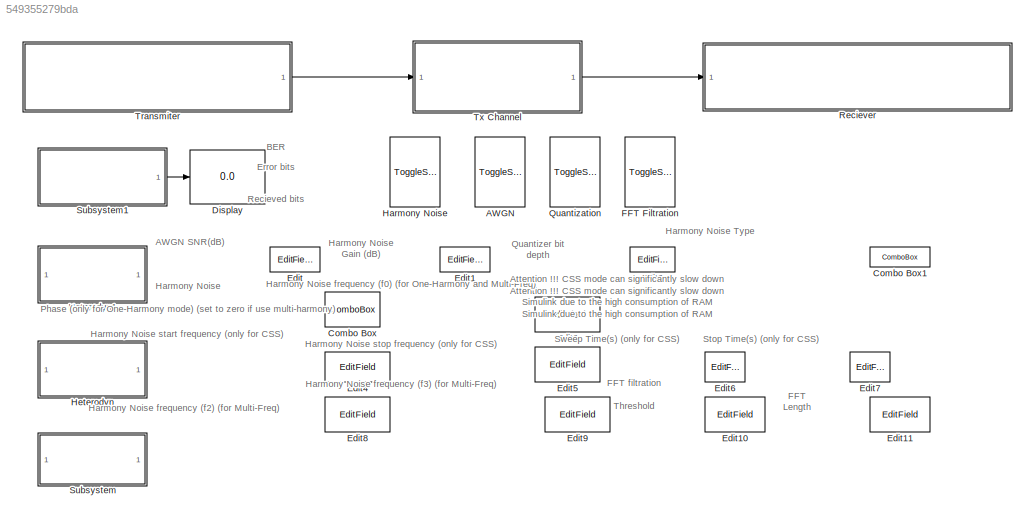
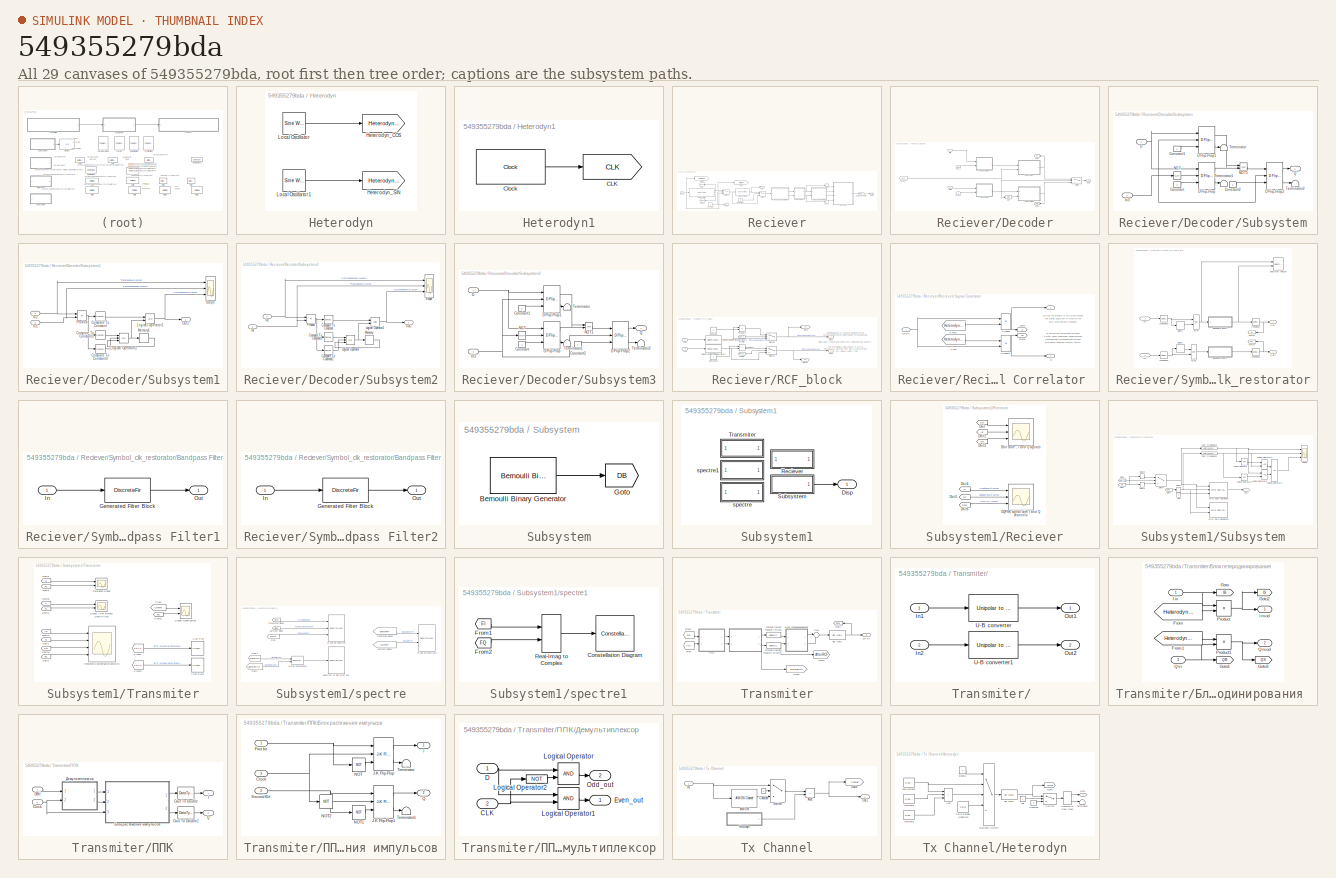
[diagram: thumbnail index - all 29 canvases of the model, root first then tree order]
MODEL slx_549355279bda
KIND model
CONFIG AbsTol = auto
CONFIG EnableMultiTasking = off
CONFIG FixedStep = auto
CONFIG MaxStep = auto
CONFIG MinStep = auto
CONFIG RelTol = 1e-3
CONFIG SampleTimeConstraint = Unconstrained
CONFIG SolverName = VariableStepAuto
CONFIG StartTime = 0.0
CONFIG StopTime = 1
WORKSPACE source: mxarray member
WORKSPACE BitRate = 20480
WORKSPACE CoreFreq = 40960
WORKSPACE RCF_Rolloff_factor = 0.1
WORKSPACE SampleRateQPSK = 819200
BLOCK [ToggleSwitchBlock] AWGN
  LabelPosition = Hide
BLOCK [ComboBox] Combo Box
  LabelPosition = Hide
  SelectedLabel = 0deg
BLOCK [ComboBox] Combo Box1
  LabelPosition = Hide
  SelectedLabel = One-Harmony
BLOCK [Display] Display
  Decimation = 1
  Ports = [1]
BLOCK [EditField] Edit
  Alignment = Center
  LabelPosition = Hide
  ShowInitialText = on
BLOCK [EditField] Edit1
  Alignment = Center
  LabelPosition = Hide
  ShowInitialText = on
BLOCK [EditField] Edit10
  Alignment = Center
  LabelPosition = Hide
  ShowInitialText = on
BLOCK [EditField] Edit11
  Alignment = Center
  LabelPosition = Hide
  ShowInitialText = on
BLOCK [EditField] Edit2
  Alignment = Center
  LabelPosition = Hide
  ShowInitialText = on
BLOCK [EditField] Edit3
  Alignment = Center
  LabelPosition = Hide
  ShowInitialText = on
BLOCK [EditField] Edit4
  Alignment = Center
  LabelPosition = Hide
  ShowInitialText = on
BLOCK [EditField] Edit5
  Alignment = Center
  LabelPosition = Hide
  ShowInitialText = on
BLOCK [EditField] Edit6
  Alignment = Center
  LabelPosition = Hide
  ShowInitialText = on
BLOCK [EditField] Edit7
  Alignment = Center
  LabelPosition = Hide
  ShowInitialText = on
BLOCK [EditField] Edit8
  Alignment = Center
  LabelPosition = Hide
  ShowInitialText = on
BLOCK [EditField] Edit9
  Alignment = Center
  LabelPosition = Hide
  ShowInitialText = on
BLOCK [ToggleSwitchBlock] FFT Filtration
  LabelPosition = Hide
BLOCK [ToggleSwitchBlock] Harmony Noise
  LabelPosition = Hide
BLOCK [SubSystem] Heterodyn
  Ports = []
  RequestExecContextInheritance = off
BLOCK [Goto] Heterodyn/Heterodyn_COS
  GotoTag = Heterodyn_COS
  TagVisibility = global
BLOCK [Goto] Heterodyn/Heterodyn_SIN
  GotoTag = Heterodyn_SIN
  TagVisibility = global
BLOCK [Reference] Heterodyn/Local Oscillator  REF=dspsrcs4/Sine Wave
  Ports = [0, 1]
  SourceBlock = dspsrcs4/Sine Wave
  SourceProductBaseCode = DS
  SourceType = Sine Wave
BLOCK [Reference] Heterodyn/Local Oscillator1  REF=dspsrcs4/Sine Wave
  Ports = [0, 1]
  SourceBlock = dspsrcs4/Sine Wave
  SourceProductBaseCode = DS
  SourceType = Sine Wave
BLOCK [SubSystem] Heterodyn1
  Ports = []
  RequestExecContextInheritance = off
BLOCK [Goto] Heterodyn1/CLK
  GotoTag = CLK
  TagVisibility = global
BLOCK [Reference] Heterodyn1/Clock  REF=simulink_extras/Flip Flops/Clock
  Ports = [0, 1]
  SourceBlock = simulink_extras/Flip Flops/Clock
  SourceProductBaseCode = SL
  SourceType = Digital clock
BLOCK [ToggleSwitchBlock] Quantization
  LabelPosition = Hide
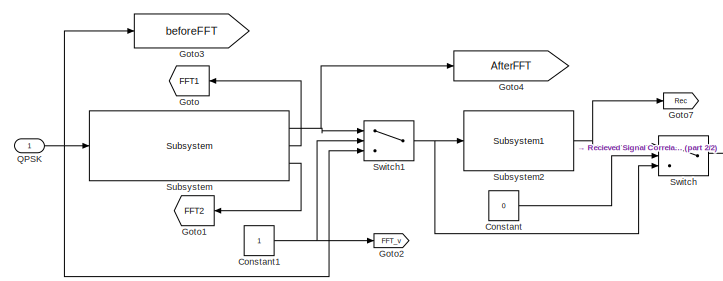
[diagram: Reciever - part 1/2, left side, full height]
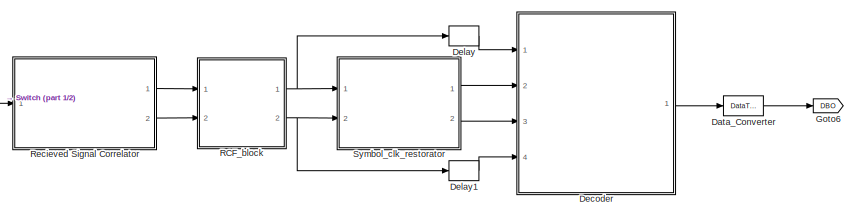
[diagram: Reciever - part 2/2, middle right region]
BLOCK [SubSystem] Reciever
  Ports = [1]
  RequestExecContextInheritance = off
BLOCK [Constant] Reciever/Constant
  Value = 0
BLOCK [Constant] Reciever/Constant1
BLOCK [DataTypeConversion] Reciever/Data_Converter
  OutDataTypeStr = double
  RndMeth = Floor
  SaturateOnIntegerOverflow = off
BLOCK [SubSystem] Reciever/Decoder
  Ports = [4, 1]
  RequestExecContextInheritance = off
BLOCK [Inport] Reciever/Decoder/CLK_I
  Port = 2
BLOCK [Inport] Reciever/Decoder/CLK_Q
  Port = 3
BLOCK [From] Reciever/Decoder/From
  GotoTag = CLK
  TagVisibility = global
BLOCK [Goto] Reciever/Decoder/Goto2
  GotoTag = RI
  TagVisibility = global
BLOCK [Goto] Reciever/Decoder/Goto3
  GotoTag = RQ
  TagVisibility = global
BLOCK [Inport] Reciever/Decoder/IBits
BLOCK [Logic] Reciever/Decoder/NOT
  AllPortsSameDT = off
  Operator = NOT
  OutDataTypeStr = boolean
  Ports = [1, 1]
BLOCK [Outport] Reciever/Decoder/Out1
BLOCK [Inport] Reciever/Decoder/Qbits
  Port = 4
BLOCK [SubSystem] Reciever/Decoder/Subsystem
  Ports = [2, 1]
  RequestExecContextInheritance = off
BLOCK [Constant] Reciever/Decoder/Subsystem/Constant
BLOCK [Constant] Reciever/Decoder/Subsystem/Constant1
BLOCK [Constant] Reciever/Decoder/Subsystem/Constant2
BLOCK [Inport] Reciever/Decoder/Subsystem/D
BLOCK [Reference] Reciever/Decoder/Subsystem/D Flip-Flop  REF=simulink_extras/Flip Flops/D Flip-Flop
  Ports = [3, 2]
  SourceBlock = simulink_extras/Flip Flops/D Flip-Flop
  SourceProductBaseCode = SL
  SourceType = DFlipFlop
BLOCK [Reference] Reciever/Decoder/Subsystem/D Flip-Flop1  REF=simulink_extras/Flip Flops/D Flip-Flop
  Ports = [3, 2]
  SourceBlock = simulink_extras/Flip Flops/D Flip-Flop
  SourceProductBaseCode = SL
  SourceType = DFlipFlop
BLOCK [Reference] Reciever/Decoder/Subsystem/D Flip-Flop2  REF=simulink_extras/Flip Flops/D Flip-Flop
  Ports = [3, 2]
  SourceBlock = simulink_extras/Flip Flops/D Flip-Flop
  SourceProductBaseCode = SL
  SourceType = DFlipFlop
BLOCK [Inport] Reciever/Decoder/Subsystem/In3
  Port = 2
BLOCK [Logic] Reciever/Decoder/Subsystem/NOT
  AllPortsSameDT = off
  Operator = NOT
  OutDataTypeStr = boolean
  Ports = [1, 1]
BLOCK [Logic] Reciever/Decoder/Subsystem/NOT1
  AllPortsSameDT = off
  Operator = OR
  OutDataTypeStr = boolean
  Ports = [2, 1]
BLOCK [Outport] Reciever/Decoder/Subsystem/Q
BLOCK [Terminator] Reciever/Decoder/Subsystem/Terminator
BLOCK [Terminator] Reciever/Decoder/Subsystem/Terminator1
BLOCK [Terminator] Reciever/Decoder/Subsystem/Terminator2
BLOCK [SubSystem] Reciever/Decoder/Subsystem1
  Ports = [2, 1]
  RequestExecContextInheritance = off
BLOCK [Reference] Reciever/Decoder/Subsystem1/Compare To Constant  REF=simulink/Logic and Bit
Operations/Compare
To Constant
  Ports = [1, 1]
  SourceBlock = simulink/Logic and Bit\nOperations/Compare\nTo Constant
  SourceProductBaseCode = SL
  SourceType = Compare To Constant
BLOCK [Reference] Reciever/Decoder/Subsystem1/Compare To Constant2  REF=simulink/Logic and Bit
Operations/Compare
To Constant
  Ports = [1, 1]
  SourceBlock = simulink/Logic and Bit\nOperations/Compare\nTo Constant
  SourceProductBaseCode = SL
  SourceType = Compare To Constant
BLOCK [Reference] Reciever/Decoder/Subsystem1/Compare To Constant3  REF=simulink/Logic and Bit
Operations/Compare
To Constant
  Ports = [1, 1]
  SourceBlock = simulink/Logic and Bit\nOperations/Compare\nTo Constant
  SourceProductBaseCode = SL
  SourceType = Compare To Constant
BLOCK [Inport] Reciever/Decoder/Subsystem1/In1
  Port = 2
BLOCK [Inport] Reciever/Decoder/Subsystem1/In2
BLOCK [Logic] Reciever/Decoder/Subsystem1/Logical Operator1
  AllPortsSameDT = off
  OutDataTypeStr = boolean
  Ports = [2, 1]
BLOCK [Logic] Reciever/Decoder/Subsystem1/Logical Operator2
  AllPortsSameDT = off
  Inputs = 3
  Operator = OR
  OutDataTypeStr = boolean
  Ports = [3, 1]
BLOCK [Memory] Reciever/Decoder/Subsystem1/Memory1
  InheritSampleTime = on
BLOCK [Outport] Reciever/Decoder/Subsystem1/Out1
  VectorParamsAs1DForOutWhenUnconnected = off
BLOCK [Product] Reciever/Decoder/Subsystem1/Product
  Ports = [2, 1]
BLOCK [Scope] Reciever/Decoder/Subsystem1/Scope
  Floating = off
  NumInputPorts = 3
  Ports = [3]
  ScopeSpecificationString = Simulink.scopes.TimeScopeBlockCfg('CurrentConfiguration', extmgr.ConfigurationSet(extmgr.Configuration('Core','General UI',true,'FigureColor',[1 1 1]),extmgr.Configuration('Core','Source UI',true),extmgr.Configuration('Sources','WiredSimulink',true,'DataLoggingVariableName','ScopeData1'),extmgr.Configuration('Visuals','Time Domain',true,'SerializedDisplays',{struct('MinYLimReal','-7.87641','MaxYLi...<+3354ch>
BLOCK [SubSystem] Reciever/Decoder/Subsystem2
  Ports = [2, 1]
  RequestExecContextInheritance = off
BLOCK [Reference] Reciever/Decoder/Subsystem2/Compare To Constant  REF=simulink/Logic and Bit
Operations/Compare
To Constant
  Ports = [1, 1]
  SourceBlock = simulink/Logic and Bit\nOperations/Compare\nTo Constant
  SourceProductBaseCode = SL
  SourceType = Compare To Constant
BLOCK [Reference] Reciever/Decoder/Subsystem2/Compare To Constant1  REF=simulink/Logic and Bit
Operations/Compare
To Constant
  Ports = [1, 1]
  SourceBlock = simulink/Logic and Bit\nOperations/Compare\nTo Constant
  SourceProductBaseCode = SL
  SourceType = Compare To Constant
BLOCK [Reference] Reciever/Decoder/Subsystem2/Compare To Constant2  REF=simulink/Logic and Bit
Operations/Compare
To Constant
  Ports = [1, 1]
  SourceBlock = simulink/Logic and Bit\nOperations/Compare\nTo Constant
  SourceProductBaseCode = SL
  SourceType = Compare To Constant
BLOCK [Inport] Reciever/Decoder/Subsystem2/In1
BLOCK [Inport] Reciever/Decoder/Subsystem2/In2
  Port = 2
BLOCK [Logic] Reciever/Decoder/Subsystem2/Logical Operator
  AllPortsSameDT = off
  Inputs = 3
  Operator = OR
  OutDataTypeStr = boolean
  Ports = [3, 1]
BLOCK [Logic] Reciever/Decoder/Subsystem2/Logical Operator1
  AllPortsSameDT = off
  OutDataTypeStr = boolean
  Ports = [2, 1]
BLOCK [Memory] Reciever/Decoder/Subsystem2/Memory
  InheritSampleTime = on
BLOCK [Outport] Reciever/Decoder/Subsystem2/Out1
  VectorParamsAs1DForOutWhenUnconnected = off
BLOCK [Product] Reciever/Decoder/Subsystem2/Product
  Ports = [2, 1]
BLOCK [Scope] Reciever/Decoder/Subsystem2/Scope
  Floating = off
  NumInputPorts = 3
  Ports = [3]
  ScopeSpecificationString = Simulink.scopes.TimeScopeBlockCfg('CurrentConfiguration', extmgr.ConfigurationSet(extmgr.Configuration('Core','General UI',true,'FigureColor',[1 1 1]),extmgr.Configuration('Core','Source UI',true),extmgr.Configuration('Sources','WiredSimulink',true,'DataLoggingVariableName','ScopeData1'),extmgr.Configuration('Visuals','Time Domain',true,'SerializedDisplays',{struct('MinYLimReal','-0.125','MaxYLimR...<+3326ch>
BLOCK [SubSystem] Reciever/Decoder/Subsystem3
  Ports = [2, 1]
  RequestExecContextInheritance = off
BLOCK [Constant] Reciever/Decoder/Subsystem3/Constant
BLOCK [Constant] Reciever/Decoder/Subsystem3/Constant1
BLOCK [Constant] Reciever/Decoder/Subsystem3/Constant2
BLOCK [Inport] Reciever/Decoder/Subsystem3/D
BLOCK [Reference] Reciever/Decoder/Subsystem3/D Flip-Flop  REF=simulink_extras/Flip Flops/D Flip-Flop
  Ports = [3, 2]
  SourceBlock = simulink_extras/Flip Flops/D Flip-Flop
  SourceProductBaseCode = SL
  SourceType = DFlipFlop
BLOCK [Reference] Reciever/Decoder/Subsystem3/D Flip-Flop1  REF=simulink_extras/Flip Flops/D Flip-Flop
  Ports = [3, 2]
  SourceBlock = simulink_extras/Flip Flops/D Flip-Flop
  SourceProductBaseCode = SL
  SourceType = DFlipFlop
BLOCK [Reference] Reciever/Decoder/Subsystem3/D Flip-Flop2  REF=simulink_extras/Flip Flops/D Flip-Flop
  Ports = [3, 2]
  SourceBlock = simulink_extras/Flip Flops/D Flip-Flop
  SourceProductBaseCode = SL
  SourceType = DFlipFlop
BLOCK [Inport] Reciever/Decoder/Subsystem3/In3
  Port = 2
BLOCK [Logic] Reciever/Decoder/Subsystem3/NOT
  AllPortsSameDT = off
  Operator = NOT
  OutDataTypeStr = boolean
  Ports = [1, 1]
BLOCK [Logic] Reciever/Decoder/Subsystem3/NOT1
  AllPortsSameDT = off
  Operator = OR
  OutDataTypeStr = boolean
  Ports = [2, 1]
BLOCK [Outport] Reciever/Decoder/Subsystem3/Q
BLOCK [Terminator] Reciever/Decoder/Subsystem3/Terminator
BLOCK [Terminator] Reciever/Decoder/Subsystem3/Terminator1
BLOCK [Terminator] Reciever/Decoder/Subsystem3/Terminator2
BLOCK [Switch] Reciever/Decoder/Switch
  Criteria = u2 > Threshold
  InputSameDT = off
  SaturateOnIntegerOverflow = off
BLOCK [Delay] Reciever/Delay
  DelayLength = 9
  InitialCondition = 0
  InputPortMap = u0
  Ports = [1, 1]
BLOCK [Delay] Reciever/Delay1
  DelayLength = 9
  InitialCondition = 0
  InputPortMap = u0
  Ports = [1, 1]
BLOCK [Goto] Reciever/Goto
  GotoTag = FFT1
  TagVisibility = global
BLOCK [Goto] Reciever/Goto1
  GotoTag = FFT2
  TagVisibility = global
BLOCK [Goto] Reciever/Goto2
  GotoTag = FFT_v
  TagVisibility = global
BLOCK [Goto] Reciever/Goto3
  GotoTag = beforeFFT
  TagVisibility = global
BLOCK [Goto] Reciever/Goto4
  GotoTag = AfterFFT
  TagVisibility = global
BLOCK [Goto] Reciever/Goto6
  GotoTag = DBO
  TagVisibility = global
BLOCK [Goto] Reciever/Goto7
  GotoTag = Rec
  TagVisibility = global
BLOCK [Inport] Reciever/QPSK
  NameLocation = top
BLOCK [SubSystem] Reciever/RCF_block
  Ports = [2, 2]
  RequestExecContextInheritance = off
BLOCK [Constant] Reciever/RCF_block/Constant
  Value = -1
BLOCK [Constant] Reciever/RCF_block/Constant1
BLOCK [From] Reciever/RCF_block/From1
  GotoTag = FFT_v
  TagVisibility = global
BLOCK [From] Reciever/RCF_block/From3
  GotoTag = FFT_v
  TagVisibility = global
BLOCK [Goto] Reciever/RCF_block/Goto
  GotoTag = FI
  TagVisibility = global
BLOCK [Goto] Reciever/RCF_block/Goto1
  GotoTag = FQ
  TagVisibility = global
BLOCK [Inport] Reciever/RCF_block/In1
BLOCK [Inport] Reciever/RCF_block/In2
  Port = 2
BLOCK [Outport] Reciever/RCF_block/Out1
  VectorParamsAs1DForOutWhenUnconnected = off
BLOCK [Outport] Reciever/RCF_block/Out2
  Port = 2
  VectorParamsAs1DForOutWhenUnconnected = off
BLOCK [Product] Reciever/RCF_block/Product1
  Ports = [2, 1]
BLOCK [Product] Reciever/RCF_block/Product2
  Ports = [2, 1]
BLOCK [Reference] Reciever/RCF_block/Raised Cosine Receive Filter1  REF=commfilt2/Raised Cosine
Receive Filter
  Ports = [1, 1]
  SourceBlock = commfilt2/Raised Cosine\nReceive Filter
  SourceProductBaseCode = CM
  SourceType = Raised Cosine Receive Filter
BLOCK [Reference] Reciever/RCF_block/Raised Cosine Receive Filter2  REF=commfilt2/Raised Cosine
Receive Filter
  Ports = [1, 1]
  SourceBlock = commfilt2/Raised Cosine\nReceive Filter
  SourceProductBaseCode = CM
  SourceType = Raised Cosine Receive Filter
BLOCK [Switch] Reciever/RCF_block/Switch1
  Criteria = u2 > Threshold
  InputSameDT = off
  SaturateOnIntegerOverflow = off
BLOCK [Switch] Reciever/RCF_block/Switch3
  Criteria = u2 > Threshold
  InputSameDT = off
  SaturateOnIntegerOverflow = off
BLOCK [SubSystem] Reciever/Recieved Signal Correlator 
  Ports = [1, 2]
  RequestExecContextInheritance = off
BLOCK [From] Reciever/Recieved Signal Correlator /From
  GotoTag = Heterodyn_SIN
  TagVisibility = global
BLOCK [From] Reciever/Recieved Signal Correlator /From1
  GotoTag = Heterodyn_COS
  TagVisibility = global
BLOCK [Goto] Reciever/Recieved Signal Correlator /Goto
  GotoTag = HI
  TagVisibility = global
BLOCK [Goto] Reciever/Recieved Signal Correlator /Goto1
  GotoTag = HQ
  TagVisibility = global
BLOCK [Outport] Reciever/Recieved Signal Correlator /I
  VectorParamsAs1DForOutWhenUnconnected = off
BLOCK [Product] Reciever/Recieved Signal Correlator /Product
  Inputs = **
  Ports = [2, 1]
BLOCK [Product] Reciever/Recieved Signal Correlator /Product1
  Inputs = **
  Ports = [2, 1]
BLOCK [Outport] Reciever/Recieved Signal Correlator /Q
  Port = 2
  VectorParamsAs1DForOutWhenUnconnected = off
BLOCK [Inport] Reciever/Recieved Signal Correlator /QPSK
BLOCK [Reference] Reciever/Subsystem  REF=Custom_Lib/Subsystem
  Ports = [1, 3]
  SourceBlock = Custom_Lib/Subsystem
  SourceType = Fourier Filtration
BLOCK [Reference] Reciever/Subsystem2  REF=Custom_Lib/Subsystem1
  Ports = [1, 1]
  SourceBlock = Custom_Lib/Subsystem1
  SourceType = Quantization
BLOCK [Switch] Reciever/Switch
  Criteria = u2 > Threshold
  InputSameDT = off
  SaturateOnIntegerOverflow = off
BLOCK [Switch] Reciever/Switch1
  Criteria = u2 > Threshold
  InputSameDT = off
  SaturateOnIntegerOverflow = off
BLOCK [SubSystem] Reciever/Symbol_clk_restorator
  Ports = [2, 2]
  RequestExecContextInheritance = off
BLOCK [SubSystem] Reciever/Symbol_clk_restorator/Bandpass Filter1
  CopyFcn = fdesignblkfcn(gcbh, {'CopyFcn'});
  DialogController = fdesignblkfcn
  InitFcn = fdesignblkfcn(gcbh, {'InitFcn'});
  Ports = [1, 1]
  RequestExecContextInheritance = off
  UserDataPersistent = on
BLOCK [DiscreteFir] Reciever/Symbol_clk_restorator/Bandpass Filter1/Generated Filter Block
  Coefficients = [4.05282452307651402e-05 7.68148911109423196e-05 0.000102809615405821014 0.000113840452892248302 0.000107451763689613838 8.39092471331200112e-05 4.62717979219793557e-05 -7.75579204515229648e-19 -4.78508545167798566e-05 -8.97324707078659285e-05 -0.00011882451270601134 -0.000130172989540274333 -0.00012155180540719416 -9.38945353886637608e-05 -5.12124263141688931e-05 1.31470799812175278e-18 5.1782956...<+14191ch>
  InputPortMap = u0
  OutputPortMap = o0
  Ports = [1, 1]
  Tag = BlockMethodSubSystem
BLOCK [Inport] Reciever/Symbol_clk_restorator/Bandpass Filter1/In
BLOCK [Outport] Reciever/Symbol_clk_restorator/Bandpass Filter1/Out
  VectorParamsAs1DForOutWhenUnconnected = off
BLOCK [SubSystem] Reciever/Symbol_clk_restorator/Bandpass Filter2
  CopyFcn = fdesignblkfcn(gcbh, {'CopyFcn'});
  DialogController = fdesignblkfcn
  InitFcn = fdesignblkfcn(gcbh, {'InitFcn'});
  Ports = [1, 1]
  RequestExecContextInheritance = off
  UserDataPersistent = on
BLOCK [DiscreteFir] Reciever/Symbol_clk_restorator/Bandpass Filter2/Generated Filter Block
  Coefficients = [4.05282452307651402e-05 7.68148911109423196e-05 0.000102809615405821014 0.000113840452892248302 0.000107451763689613838 8.39092471331200112e-05 4.62717979219793557e-05 -7.75579204515229648e-19 -4.78508545167798566e-05 -8.97324707078659285e-05 -0.00011882451270601134 -0.000130172989540274333 -0.00012155180540719416 -9.38945353886637608e-05 -5.12124263141688931e-05 1.31470799812175278e-18 5.1782956...<+14191ch>
  InputPortMap = u0
  OutputPortMap = o0
  Ports = [1, 1]
  Tag = BlockMethodSubSystem
BLOCK [Inport] Reciever/Symbol_clk_restorator/Bandpass Filter2/In
BLOCK [Outport] Reciever/Symbol_clk_restorator/Bandpass Filter2/Out
  VectorParamsAs1DForOutWhenUnconnected = off
BLOCK [Delay] Reciever/Symbol_clk_restorator/Delay1
  InitialCondition = 0
  InputPortMap = u0
  Ports = [1, 1]
BLOCK [Delay] Reciever/Symbol_clk_restorator/Delay2
  InitialCondition = 0
  InputPortMap = u0
  Ports = [1, 1]
BLOCK [Goto] Reciever/Symbol_clk_restorator/Goto4
  GotoTag = Qsy
  TagVisibility = global
BLOCK [Goto] Reciever/Symbol_clk_restorator/Goto5
  GotoTag = Isy
  TagVisibility = global
BLOCK [Inport] Reciever/Symbol_clk_restorator/In1
BLOCK [Inport] Reciever/Symbol_clk_restorator/In2
  Port = 2
BLOCK [Reference] Reciever/Symbol_clk_restorator/IsPositive  REF=simulink/Logic and Bit
Operations/Compare
To Zero
  Ports = [1, 1]
  SourceBlock = simulink/Logic and Bit\nOperations/Compare\nTo Zero
  SourceProductBaseCode = SL
  SourceType = Compare To Zero
BLOCK [Reference] Reciever/Symbol_clk_restorator/IsPositive1  REF=simulink/Logic and Bit
Operations/Compare
To Zero
  Ports = [1, 1]
  SourceBlock = simulink/Logic and Bit\nOperations/Compare\nTo Zero
  SourceProductBaseCode = SL
  SourceType = Compare To Zero
BLOCK [Reference] Reciever/Symbol_clk_restorator/IsPositive2  REF=simulink/Logic and Bit
Operations/Compare
To Zero
  Ports = [1, 1]
  SourceBlock = simulink/Logic and Bit\nOperations/Compare\nTo Zero
  SourceProductBaseCode = SL
  SourceType = Compare To Zero
BLOCK [Reference] Reciever/Symbol_clk_restorator/IsPositive3  REF=simulink/Logic and Bit
Operations/Compare
To Zero
  Ports = [1, 1]
  SourceBlock = simulink/Logic and Bit\nOperations/Compare\nTo Zero
  SourceProductBaseCode = SL
  SourceType = Compare To Zero
BLOCK [Outport] Reciever/Symbol_clk_restorator/Out1
  VectorParamsAs1DForOutWhenUnconnected = off
BLOCK [Outport] Reciever/Symbol_clk_restorator/Out2
  Port = 2
  VectorParamsAs1DForOutWhenUnconnected = off
BLOCK [SpectrumAnalyzer] Reciever/Symbol_clk_restorator/Spectrum Analyzer
  NumInputPorts = 2
  Ports = [2]
  ScopeSpecificationString = spbscopes.SpectrumAnalyzerBlockCfg('CurrentConfiguration', extmgr.ConfigurationSet(extmgr.Configuration('Core','General UI',true),extmgr.Configuration('Core','Source UI',true),extmgr.Configuration('Sources','WiredSimulink',true),extmgr.Configuration('Visuals','Spectrum',true,'AxesProperties',struct('Color',{[0 0 0],[0 0 0]},'XColor',{[0.686274509803922 0.686274509803922 0.686274509803922],[0.68627...<+2221ch>
BLOCK [Logic] Reciever/Symbol_clk_restorator/XOR
  AllPortsSameDT = off
  IconShape = distinctive
  Operator = XOR
  OutDataTypeStr = fixdt(1,16)
  Ports = [2, 1]
BLOCK [Logic] Reciever/Symbol_clk_restorator/XOR1
  AllPortsSameDT = off
  IconShape = distinctive
  Operator = XOR
  OutDataTypeStr = fixdt(1,16)
  Ports = [2, 1]
BLOCK [SubSystem] Subsystem
  Ports = []
  RequestExecContextInheritance = off
BLOCK [Reference] Subsystem/Bernoulli Binary Generator  REF=commrandsrc3/Bernoulli Binary
Generator
  Ports = [0, 1]
  SourceBlock = commrandsrc3/Bernoulli Binary\nGenerator
  SourceProductBaseCode = CM
  SourceType = Bernoulli Binary Generator
BLOCK [Goto] Subsystem/Goto
  GotoTag = DB
  TagVisibility = global
BLOCK [SubSystem] Subsystem1
  Ports = [0, 1]
  RequestExecContextInheritance = off
BLOCK [Outport] Subsystem1/Disp
  VectorParamsAs1DForOutWhenUnconnected = off
BLOCK [SubSystem] Subsystem1/Reciever
  Ports = []
  RequestExecContextInheritance = off
BLOCK [From] Subsystem1/Reciever/Dbit
  GotoTag = DB
  TagVisibility = global
BLOCK [Scope] Subsystem1/Reciever/Dbit code , I and Q signals
  Floating = off
  NumInputPorts = 3
  Ports = [3]
  ScopeSpecificationString = Simulink.scopes.TimeScopeBlockCfg('CurrentConfiguration', extmgr.ConfigurationSet(extmgr.Configuration('Core','General UI',true),extmgr.Configuration('Core','Source UI',true),extmgr.Configuration('Sources','WiredSimulink',true,'DataLoggingVariableName','ScopeData2'),extmgr.Configuration('Visuals','Time Domain',true,'PlotType','Stairs','SerializedDisplays',{struct('MinYLimReal','-0.125','MaxYLimRea...<+2814ch>
BLOCK [From] Subsystem1/Reciever/Dbit2
  GotoTag = IB
  TagVisibility = global
BLOCK [From] Subsystem1/Reciever/Dbit3
  GotoTag = QB
  TagVisibility = global
BLOCK [From] Subsystem1/Reciever/Dbit4
  GotoTag = IS
  TagVisibility = global
BLOCK [From] Subsystem1/Reciever/Dbit5
  GotoTag = QS
  TagVisibility = global
BLOCK [From] Subsystem1/Reciever/Dbit6
  GotoTag = QPSK
  TagVisibility = global
BLOCK [Scope] Subsystem1/Reciever/OQPSK signal with I and Q channels
  Floating = off
  NumInputPorts = 3
  Ports = [3]
  ScopeSpecificationString = Simulink.scopes.TimeScopeBlockCfg('CurrentConfiguration', extmgr.ConfigurationSet(extmgr.Configuration('Core','General UI',true,'FigureColor',[1 1 1]),extmgr.Configuration('Core','Source UI',true),extmgr.Configuration('Sources','WiredSimulink',true,'DataLoggingVariableName','ScopeData3'),extmgr.Configuration('Visuals','Time Domain',true,'PlotType','Line','SerializedDisplays',{struct('MinYLimReal',...<+3319ch>
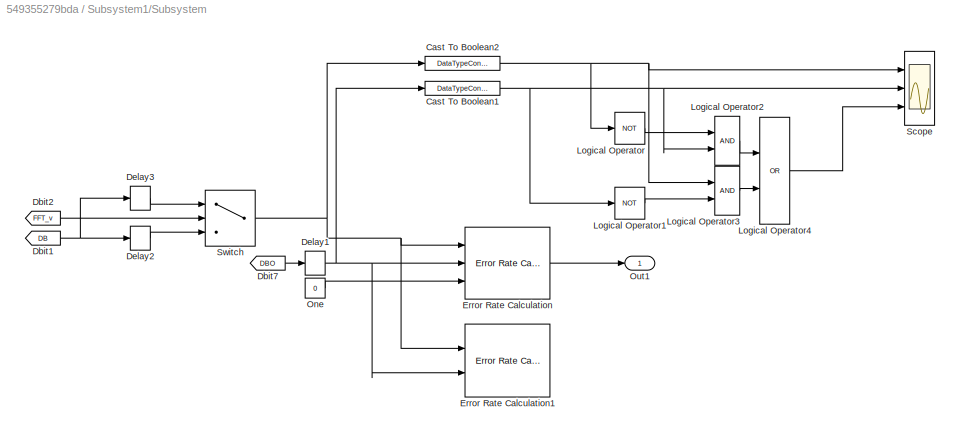
BLOCK [SubSystem] Subsystem1/Subsystem
  Ports = [0, 1]
  RequestExecContextInheritance = off
BLOCK [DataTypeConversion] Subsystem1/Subsystem/Cast To Boolean1
  OutDataTypeStr = boolean
  RndMeth = Floor
  SaturateOnIntegerOverflow = off
BLOCK [DataTypeConversion] Subsystem1/Subsystem/Cast To Boolean2
  OutDataTypeStr = boolean
  RndMeth = Floor
  SaturateOnIntegerOverflow = off
BLOCK [From] Subsystem1/Subsystem/Dbit1
  GotoTag = DB
  TagVisibility = global
BLOCK [From] Subsystem1/Subsystem/Dbit2
  GotoTag = FFT_v
  TagVisibility = global
BLOCK [From] Subsystem1/Subsystem/Dbit7
  GotoTag = DBO
  TagVisibility = global
BLOCK [Delay] Subsystem1/Subsystem/Delay1
  DelayLength = 1
  InitialCondition = 0
  InputPortMap = u0
  Ports = [1, 1]
  SampleTime = 1/BitRate
BLOCK [Delay] Subsystem1/Subsystem/Delay2
  DelayLength = 16
  InitialCondition = 0
  InputPortMap = u0
  Ports = [1, 1]
  SampleTime = 1/BitRate
BLOCK [Delay] Subsystem1/Subsystem/Delay3
  DelayLength = 16+307
  InitialCondition = 0
  InputPortMap = u0
  Ports = [1, 1]
  SampleTime = 1/BitRate
BLOCK [Reference] Subsystem1/Subsystem/Error Rate Calculation  REF=commsink2/Error Rate
Calculation
  Ports = [3, 1]
  SourceBlock = commsink2/Error Rate\nCalculation
  SourceProductBaseCode = CM
  SourceType = Error Rate Calculation
BLOCK [Reference] Subsystem1/Subsystem/Error Rate Calculation1  REF=commsink2/Error Rate
Calculation
  Ports = [2]
  SourceBlock = commsink2/Error Rate\nCalculation
  SourceProductBaseCode = CM
  SourceType = Error Rate Calculation
BLOCK [Logic] Subsystem1/Subsystem/Logical Operator
  AllPortsSameDT = off
  Operator = NOT
  OutDataTypeStr = boolean
  Ports = [1, 1]
BLOCK [Logic] Subsystem1/Subsystem/Logical Operator1
  AllPortsSameDT = off
  Operator = NOT
  OutDataTypeStr = boolean
  Ports = [1, 1]
BLOCK [Logic] Subsystem1/Subsystem/Logical Operator2
  AllPortsSameDT = off
  OutDataTypeStr = boolean
  Ports = [2, 1]
BLOCK [Logic] Subsystem1/Subsystem/Logical Operator3
  AllPortsSameDT = off
  OutDataTypeStr = boolean
  Ports = [2, 1]
BLOCK [Logic] Subsystem1/Subsystem/Logical Operator4
  AllPortsSameDT = off
  Operator = OR
  OutDataTypeStr = boolean
  Ports = [2, 1]
BLOCK [Constant] Subsystem1/Subsystem/One
  Value = 0
BLOCK [Outport] Subsystem1/Subsystem/Out1
  VectorParamsAs1DForOutWhenUnconnected = off
BLOCK [Scope] Subsystem1/Subsystem/Scope
  Floating = off
  NumInputPorts = 3
  Ports = [3]
  ScopeSpecificationString = Simulink.scopes.TimeScopeBlockCfg('CurrentConfiguration', extmgr.ConfigurationSet(extmgr.Configuration('Core','General UI',true),extmgr.Configuration('Core','Source UI',true),extmgr.Configuration('Sources','WiredSimulink',true,'DataLoggingVariableName','ScopeData1'),extmgr.Configuration('Visuals','Time Domain',true,'SerializedDisplays',{struct('MinYLimReal','-0.125','MaxYLimReal','1.04054','YLabel...<+2789ch>
BLOCK [Switch] Subsystem1/Subsystem/Switch
  Criteria = u2 > Threshold
  InputSameDT = off
  SaturateOnIntegerOverflow = off
BLOCK [SubSystem] Subsystem1/Transmiter
  Ports = []
  RequestExecContextInheritance = off
BLOCK [ArrayPlot] Subsystem1/Transmiter/Array Plot
  Ports = [1]
  ScopeSpecificationString = dsp.scopes.ArrayPlotBlockSpecification('CurrentConfiguration', extmgr.ConfigurationSet(extmgr.Configuration('Core','General UI',true),extmgr.Configuration('Core','Source UI',true),extmgr.Configuration('Sources','WiredSimulink',true),extmgr.Configuration('Visuals','Array Plot',true,'DisplayPropertyDefaults',struct('MinYLimReal','-188.172','MaxYLimReal','1697.99','YLabelReal','Amplitude','MinYLimMag...<+3076ch>
BLOCK [ArrayPlot] Subsystem1/Transmiter/Array Plot1
  Ports = [1]
  ScopeSpecificationString = dsp.scopes.ArrayPlotBlockSpecification('CurrentConfiguration', extmgr.ConfigurationSet(extmgr.Configuration('Core','General UI',true),extmgr.Configuration('Core','Source UI',true),extmgr.Configuration('Sources','WiredSimulink',true),extmgr.Configuration('Visuals','Array Plot',true,'DisplayPropertyDefaults',struct('MinYLimReal','-169.358','MaxYLimReal','1524.22','YLabelReal','Amplitude','MinYLimMag...<+1462ch>
BLOCK [Scope] Subsystem1/Transmiter/Corelated Signal
  Floating = off
  NumInputPorts = 2
  Ports = [2]
  ScopeSpecificationString = Simulink.scopes.TimeScopeBlockCfg('CurrentConfiguration', extmgr.ConfigurationSet(extmgr.Configuration('Core','General UI',true,'FigureColor',[1 1 1]),extmgr.Configuration('Core','Source UI',true),extmgr.Configuration('Sources','WiredSimulink',true,'DataLoggingVariableName','ScopeData2'),extmgr.Configuration('Visuals','Time Domain',true,'PlotType','Stairs','SerializedDisplays',{struct('MinYLimReal...<+2483ch>
BLOCK [From] Subsystem1/Transmiter/Dbit1
  GotoTag = RI
  TagVisibility = global
BLOCK [From] Subsystem1/Transmiter/Dbit10
  GotoTag = FI
  TagVisibility = global
BLOCK [From] Subsystem1/Transmiter/Dbit11
  GotoTag = FQ
  TagVisibility = global
BLOCK [From] Subsystem1/Transmiter/Dbit12
  GotoTag = Isy
  TagVisibility = global
BLOCK [From] Subsystem1/Transmiter/Dbit13
  GotoTag = Qsy
  TagVisibility = global
BLOCK [From] Subsystem1/Transmiter/Dbit2
  GotoTag = RQ
  TagVisibility = global
BLOCK [From] Subsystem1/Transmiter/Dbit8
  GotoTag = HI
  TagVisibility = global
BLOCK [From] Subsystem1/Transmiter/Dbit9
  GotoTag = HQ
  TagVisibility = global
BLOCK [From] Subsystem1/Transmiter/From
  GotoTag = Channel
  TagVisibility = global
BLOCK [From] Subsystem1/Transmiter/From1
  GotoTag = FFT1
  TagVisibility = global
BLOCK [From] Subsystem1/Transmiter/From2
  GotoTag = Rec
  TagVisibility = global
BLOCK [From] Subsystem1/Transmiter/From3
  GotoTag = FFT2
  TagVisibility = global
BLOCK [Scope] Subsystem1/Transmiter/Restored Syncronisation and Bits
  Floating = off
  NumInputPorts = 4
  Ports = [4]
  ScopeSpecificationString = Simulink.scopes.TimeScopeBlockCfg('CurrentConfiguration', extmgr.ConfigurationSet(extmgr.Configuration('Core','General UI',true),extmgr.Configuration('Core','Source UI',true),extmgr.Configuration('Sources','WiredSimulink',true,'DataLoggingVariableName','ScopeData2'),extmgr.Configuration('Visuals','Time Domain',true,'PlotType','Stairs','SerializedDisplays',{struct('MinYLimReal','-0.125','MaxYLimRea...<+3838ch>
BLOCK [Scope] Subsystem1/Transmiter/Signal After Raised Cosin Filter
  Floating = off
  NumInputPorts = 2
  Ports = [2]
  ScopeSpecificationString = Simulink.scopes.TimeScopeBlockCfg('CurrentConfiguration', extmgr.ConfigurationSet(extmgr.Configuration('Core','General UI',true,'FigureColor',[1 1 1]),extmgr.Configuration('Core','Source UI',true),extmgr.Configuration('Sources','WiredSimulink',true,'DataLoggingVariableName','ScopeData1'),extmgr.Configuration('Visuals','Time Domain',true,'PlotType','Stairs','SerializedDisplays',{struct('MinYLimReal...<+2455ch>
BLOCK [Scope] Subsystem1/Transmiter/Signal Quantization
  Floating = off
  NameLocation = right
  NumInputPorts = 2
  Ports = [2]
  ScopeSpecificationString = Simulink.scopes.TimeScopeBlockCfg('CurrentConfiguration', extmgr.ConfigurationSet(extmgr.Configuration('Core','General UI',true,'FigureColor',[1 1 1]),extmgr.Configuration('Core','Source UI',true),extmgr.Configuration('Sources','WiredSimulink',true,'DataLoggingVariableName','ScopeData1'),extmgr.Configuration('Visuals','Time Domain',true,'PlotType','Stairs','SerializedDisplays',{struct('MinYLimReal...<+2413ch>
BLOCK [SubSystem] Subsystem1/spectre
  Ports = []
  RequestExecContextInheritance = off
BLOCK [From] Subsystem1/spectre/From
  GotoTag = Channel
  TagVisibility = global
BLOCK [From] Subsystem1/spectre/From2
  GotoTag = BeforeRCF
  TagVisibility = global
BLOCK [From] Subsystem1/spectre/From3
  GotoTag = AfterRCF
  TagVisibility = global
BLOCK [From] Subsystem1/spectre/Harmony Noise
  GotoTag = HrmNo
  TagVisibility = global
BLOCK [From] Subsystem1/spectre/Harmony Noise1
  GotoTag = AfterFFT
  TagVisibility = global
BLOCK [Concatenate] Subsystem1/spectre/Matrix Concatenate
  ConcatenateDimension = 2
  Mode = Multidimensional array
  Ports = [2, 1]
BLOCK [SpectrumAnalyzer] Subsystem1/spectre/Spectrum of bits after RCF
  Ports = [1]
  ScopeSpecificationString = spbscopes.SpectrumAnalyzerBlockCfg('CurrentConfiguration', extmgr.ConfigurationSet(extmgr.Configuration('Core','General UI',true,'FigureColor',[1 1 1]),extmgr.Configuration('Core','Source UI',true),extmgr.Configuration('Sources','WiredSimulink',true),extmgr.Configuration('Sources','SimulinkEvent',false),extmgr.Configuration('Sources','Simulink',false),extmgr.Configuration('Sources','SPTool',false)...<+4441ch>
BLOCK [From] Subsystem1/spectre/Transmited Signal
  GotoTag = QPSK
  TagVisibility = global
BLOCK [From] Subsystem1/spectre/Transmited Signal1
  GotoTag = beforeFFT
  TagVisibility = global
BLOCK [SpectrumAnalyzer] Subsystem1/spectre/Tx and Rx spectrum
  NumInputPorts = 3
  Ports = [3]
  ScopeSpecificationString = spbscopes.SpectrumAnalyzerBlockCfg('CurrentConfiguration', extmgr.ConfigurationSet(extmgr.Configuration('Core','General UI',true,'FigureColor',[1 1 1]),extmgr.Configuration('Core','Source UI',true),extmgr.Configuration('Sources','WiredSimulink',true),extmgr.Configuration('Sources','SimulinkEvent',false),extmgr.Configuration('Sources','Simulink',false),extmgr.Configuration('Sources','SPTool',false)...<+4730ch>
BLOCK [SpectrumAnalyzer] Subsystem1/spectre/Tx and Rx spectrum1
  NumInputPorts = 2
  Ports = [2]
  ScopeSpecificationString = spbscopes.SpectrumAnalyzerBlockCfg('CurrentConfiguration', extmgr.ConfigurationSet(extmgr.Configuration('Core','General UI',true,'FigureColor',[1 1 1]),extmgr.Configuration('Core','Source UI',true),extmgr.Configuration('Sources','WiredSimulink',true),extmgr.Configuration('Sources','SimulinkEvent',false),extmgr.Configuration('Sources','Simulink',false),extmgr.Configuration('Sources','SPTool',false)...<+4675ch>
BLOCK [SubSystem] Subsystem1/spectre1
  Ports = []
  RequestExecContextInheritance = off
BLOCK [ConstellationDiagram] Subsystem1/spectre1/Constellation Diagram
  Ports = [1]
  ScopeSpecificationString = comm.scopes.ConstellationDiagramBlockCfg('CurrentConfiguration', extmgr.ConfigurationSet(extmgr.Configuration('Core','General UI',true,'FigureColor',[1 1 1]),extmgr.Configuration('Core','Source UI',true),extmgr.Configuration('Sources','WiredSimulink',true),extmgr.Configuration('Sources','SimulinkEvent',false),extmgr.Configuration('Sources','Simulink',false),extmgr.Configuration('Sources','SPTool',...<+2516ch>
BLOCK [From] Subsystem1/spectre1/From1
  GotoTag = FI
  TagVisibility = global
BLOCK [From] Subsystem1/spectre1/From2
  GotoTag = FQ
  TagVisibility = global
BLOCK [RealImagToComplex] Subsystem1/spectre1/Real-Imag to Complex
  Ports = [2, 1]
BLOCK [SubSystem] Transmiter
  Ports = [0, 1]
  RequestExecContextInheritance = off
BLOCK [SubSystem] Transmiter/ 
  Ports = [2, 2]
  RequestExecContextInheritance = off
BLOCK [Inport] Transmiter/ /In1
BLOCK [Inport] Transmiter/ /In2
  Port = 2
BLOCK [Outport] Transmiter/ /Out1
  VectorParamsAs1DForOutWhenUnconnected = off
BLOCK [Outport] Transmiter/ /Out2
  Port = 2
  VectorParamsAs1DForOutWhenUnconnected = off
BLOCK [Reference] Transmiter/ /U-B converter  REF=commutil2/Unipolar to
Bipolar
Converter
  Ports = [1, 1]
  SourceBlock = commutil2/Unipolar to\nBipolar\nConverter
  SourceProductBaseCode = CM
  SourceType = Unipolar to Bipolar Converter
BLOCK [Reference] Transmiter/ /U-B converter1  REF=commutil2/Unipolar to
Bipolar
Converter
  Ports = [1, 1]
  SourceBlock = commutil2/Unipolar to\nBipolar\nConverter
  SourceProductBaseCode = CM
  SourceType = Unipolar to Bipolar Converter
BLOCK [From] Transmiter/From
  GotoTag = CLK
  TagVisibility = global
BLOCK [From] Transmiter/From1
  GotoTag = DB
  TagVisibility = global
BLOCK [Goto] Transmiter/Goto
  GotoTag = QPSK
  TagVisibility = global
BLOCK [Goto] Transmiter/Goto1
  GotoTag = AfterRCF
  TagVisibility = global
BLOCK [Goto] Transmiter/Goto2
  GotoTag = BeforeRCF
  TagVisibility = global
BLOCK [Outport] Transmiter/QPSK
  VectorParamsAs1DForOutWhenUnconnected = off
BLOCK [Reference] Transmiter/Raised Cosine Transmit Filter1  REF=commfilt2/Raised Cosine
Transmit Filter
  Ports = [1, 1]
  SourceBlock = commfilt2/Raised Cosine\nTransmit Filter
  SourceProductBaseCode = CM
  SourceType = Raised Cosine Transmit Filter
BLOCK [Reference] Transmiter/Raised Cosine Transmit Filter2  REF=commfilt2/Raised Cosine
Transmit Filter
  Ports = [1, 1]
  SourceBlock = commfilt2/Raised Cosine\nTransmit Filter
  SourceProductBaseCode = CM
  SourceType = Raised Cosine Transmit Filter
BLOCK [Sum] Transmiter/Sum
  Inputs = |++
  Ports = [2, 1]
BLOCK [Reference] Transmiter/dB Gain  REF=dspmathops/dB Gain
  Ports = [1, 1]
  SourceBlock = dspmathops/dB Gain
  SourceProductBaseCode = DS
  SourceType = dB Gain
BLOCK [SubSystem] Transmiter/Блок гетеродинирования 
  Ports = [2, 2]
  RequestExecContextInheritance = off
BLOCK [From] Transmiter/Блок гетеродинирования /From
  GotoTag = Heterodyn_SIN
  TagVisibility = global
BLOCK [From] Transmiter/Блок гетеродинирования /From1
  GotoTag = Heterodyn_COS
  TagVisibility = global
BLOCK [Goto] Transmiter/Блок гетеродинирования /Goto
  GotoTag = IB
  TagVisibility = global
BLOCK [Goto] Transmiter/Блок гетеродинирования /Goto1
  GotoTag = QB
  TagVisibility = global
BLOCK [Goto] Transmiter/Блок гетеродинирования /Goto2
  GotoTag = IS
  TagVisibility = global
BLOCK [Goto] Transmiter/Блок гетеродинирования /Goto3
  GotoTag = QS
  TagVisibility = global
BLOCK [Inport] Transmiter/Блок гетеродинирования /I in
BLOCK [Outport] Transmiter/Блок гетеродинирования /I mod
  VectorParamsAs1DForOutWhenUnconnected = off
BLOCK [Product] Transmiter/Блок гетеродинирования /Product
  Inputs = **
  Ports = [2, 1]
BLOCK [Product] Transmiter/Блок гетеродинирования /Product1
  Ports = [2, 1]
BLOCK [Inport] Transmiter/Блок гетеродинирования /Q in
  Port = 2
BLOCK [Outport] Transmiter/Блок гетеродинирования /Q mod
  Port = 2
  VectorParamsAs1DForOutWhenUnconnected = off
BLOCK [SubSystem] Transmiter/ППК
  Ports = [2, 2]
  RequestExecContextInheritance = off
BLOCK [DataTypeConversion] Transmiter/ППК/Cast To Double
  OutDataTypeStr = double
  OutMax = +1
  OutMin = -1
  RndMeth = Floor
  SaturateOnIntegerOverflow = off
BLOCK [DataTypeConversion] Transmiter/ППК/Cast To Double1
  OutDataTypeStr = double
  OutMax = +1
  OutMin = -1
  RndMeth = Floor
  SaturateOnIntegerOverflow = off
BLOCK [Inport] Transmiter/ППК/Clock
  Port = 2
BLOCK [Inport] Transmiter/ППК/DBit
BLOCK [Outport] Transmiter/ППК/I
  VectorParamsAs1DForOutWhenUnconnected = off
BLOCK [Outport] Transmiter/ППК/Q
  Port = 2
  VectorParamsAs1DForOutWhenUnconnected = off
BLOCK [SubSystem] Transmiter/ППК/Блок растяжения импульсов
  Ports = [3, 2]
  RequestExecContextInheritance = off
BLOCK [Inport] Transmiter/ППК/Блок растяжения импульсов/Clock
  Port = 3
BLOCK [Inport] Transmiter/ППК/Блок растяжения импульсов/First bit
BLOCK [Outport] Transmiter/ППК/Блок растяжения импульсов/I
  VectorParamsAs1DForOutWhenUnconnected = off
BLOCK [Reference] Transmiter/ППК/Блок растяжения импульсов/J-K Flip-Flop  REF=simulink_extras/Flip Flops/J-K
Flip-Flop
  Ports = [3, 2]
  SourceBlock = simulink_extras/Flip Flops/J-K\nFlip-Flop
  SourceProductBaseCode = SL
  SourceType = JKFlipFlop
BLOCK [Reference] Transmiter/ППК/Блок растяжения импульсов/J-K Flip-Flop1  REF=simulink_extras/Flip Flops/J-K
Flip-Flop
  Ports = [3, 2]
  SourceBlock = simulink_extras/Flip Flops/J-K\nFlip-Flop
  SourceProductBaseCode = SL
  SourceType = JKFlipFlop
BLOCK [Logic] Transmiter/ППК/Блок растяжения импульсов/NOT
  AllPortsSameDT = off
  IconShape = distinctive
  Operator = NOT
  OutDataTypeStr = boolean
  Ports = [1, 1]
BLOCK [Logic] Transmiter/ППК/Блок растяжения импульсов/NOT1
  AllPortsSameDT = off
  IconShape = distinctive
  Operator = NOT
  OutDataTypeStr = boolean
  Ports = [1, 1]
BLOCK [Logic] Transmiter/ППК/Блок растяжения импульсов/NOT2
  AllPortsSameDT = off
  IconShape = distinctive
  Operator = NOT
  OutDataTypeStr = boolean
  Ports = [1, 1]
BLOCK [Outport] Transmiter/ППК/Блок растяжения импульсов/Q
  Port = 2
  VectorParamsAs1DForOutWhenUnconnected = off
BLOCK [Inport] Transmiter/ППК/Блок растяжения импульсов/Second Bit
  Port = 2
BLOCK [Terminator] Transmiter/ППК/Блок растяжения импульсов/Terminator
BLOCK [Terminator] Transmiter/ППК/Блок растяжения импульсов/Terminator1
BLOCK [SubSystem] Transmiter/ППК/Демультиплексор
  Ports = [2, 2]
  RequestExecContextInheritance = off
BLOCK [Inport] Transmiter/ППК/Демультиплексор/CLK
  Port = 2
BLOCK [Inport] Transmiter/ППК/Демультиплексор/D
BLOCK [Outport] Transmiter/ППК/Демультиплексор/Even_out
  VectorParamsAs1DForOutWhenUnconnected = off
BLOCK [Logic] Transmiter/ППК/Демультиплексор/Logical Operator
  AllPortsSameDT = off
  OutDataTypeStr = boolean
  Ports = [2, 1]
BLOCK [Logic] Transmiter/ППК/Демультиплексор/Logical Operator1
  AllPortsSameDT = off
  OutDataTypeStr = boolean
  Ports = [2, 1]
BLOCK [Logic] Transmiter/ППК/Демультиплексор/Logical Operator2
  AllPortsSameDT = off
  Operator = NOT
  OutDataTypeStr = boolean
  Ports = [1, 1]
BLOCK [Outport] Transmiter/ППК/Демультиплексор/Odd_out
  Port = 2
  VectorParamsAs1DForOutWhenUnconnected = off
BLOCK [SubSystem] Tx Channel
  Ports = [1, 1]
  RequestExecContextInheritance = off
BLOCK [Reference] Tx Channel/AWGN  REF=commchan3/AWGN
Channel
  Ports = [1, 1]
  SourceBlock = commchan3/AWGN\nChannel
  SourceProductBaseCode = CM
  SourceType = AWGN Channel
  UserDataPersistent = on
BLOCK [Sum] Tx Channel/Add
  IconShape = rectangular
  Ports = [2, 1]
BLOCK [Constant] Tx Channel/Constant
  Value = 0
BLOCK [Goto] Tx Channel/Goto7
  GotoTag = Channel
  TagVisibility = global
BLOCK [SubSystem] Tx Channel/Heterodyn
  Ports = [0, 1]
  RequestExecContextInheritance = off
BLOCK [Sum] Tx Channel/Heterodyn/Add
  IconShape = rectangular
  Inputs = +++
  Ports = [3, 1]
BLOCK [Reference] Tx Channel/Heterodyn/Chirp Spread Spectrum  REF=dspsrcs4/Chirp
  Ports = [0, 1]
  SourceBlock = dspsrcs4/Chirp
  SourceProductBaseCode = DS
  SourceType = Chirp
BLOCK [ComplexToRealImag] Tx Channel/Heterodyn/Complex to Real-Imag
  Ports = [1, 2]
BLOCK [Constant] Tx Channel/Heterodyn/Constant
  Value = 0
BLOCK [Goto] Tx Channel/Heterodyn/Goto
  GotoTag = HrmNo
  TagVisibility = global
BLOCK [Reference] Tx Channel/Heterodyn/Harmony2  REF=dspsrcs4/Sine Wave
  Ports = [0, 1]
  SourceBlock = dspsrcs4/Sine Wave
  SourceProductBaseCode = DS
  SourceType = Sine Wave
BLOCK [Reference] Tx Channel/Heterodyn/Harmony3  REF=dspsrcs4/Sine Wave
  Ports = [0, 1]
  SourceBlock = dspsrcs4/Sine Wave
  SourceProductBaseCode = DS
  SourceType = Sine Wave
BLOCK [MultiPortSwitch] Tx Channel/Heterodyn/Multiport Switch
  DataPortForDefault = Additional data port
  DiagnosticForDefault = None
  InputSameDT = off
  Ports = [5, 1]
  SaturateOnIntegerOverflow = off
BLOCK [Outport] Tx Channel/Heterodyn/Out1
BLOCK [Switch] Tx Channel/Heterodyn/Switch
  Criteria = u2 > Threshold
  InputSameDT = off
  SaturateOnIntegerOverflow = off
BLOCK [Terminator] Tx Channel/Heterodyn/Terminator
BLOCK [Reference] Tx Channel/Heterodyn/dB Gain  REF=dspmathops/dB Gain
  Ports = [1, 1]
  SourceBlock = dspmathops/dB Gain
  SourceProductBaseCode = DS
  SourceType = dB Gain
BLOCK [Reference] Tx Channel/Heterodyn/one-Harmony  REF=dspsrcs4/Sine Wave
  Ports = [0, 1]
  SourceBlock = dspsrcs4/Sine Wave
  SourceProductBaseCode = DS
  SourceType = Sine Wave
BLOCK [Constant] Tx Channel/Heterodyn/set
BLOCK [Constant] Tx Channel/Heterodyn/signalN
BLOCK [Inport] Tx Channel/In1
BLOCK [Outport] Tx Channel/Out1
BLOCK [Switch] Tx Channel/Switch
  Criteria = u2 > Threshold
  InputSameDT = off
  SaturateOnIntegerOverflow = off
ANNOTATION (root): Harmony Noise Type
ANNOTATION (root): Quantizer bit depth
ANNOTATION (root): Harmony Noise start frequency (only for CSS)
ANNOTATION (root): Harmony Noise stop frequency (only for CSS)
ANNOTATION (root): Stop Time(s) (only for CSS)
ANNOTATION (root): Sweep Time(s) (only for CSS)
ANNOTATION (root): AWGN SNR(dB)
ANNOTATION (root): FFT filtration Threshold
ANNOTATION (root): FFT Length
ANNOTATION (root): Harmony Noise frequency (f0) (for One-Harmony and Multi-Freq)
ANNOTATION (root): Harmony Noise frequency (f2) (for Multi-Freq)
ANNOTATION (root): Harmony Noise frequency (f3) (for Multi-Freq)
ANNOTATION (root): Harmony Noise Phase (only for One-Harmony mode) (set to zero if use multi-harmony)
ANNOTATION (root): Harmony Noise Gain (dB)
ANNOTATION (root): Attention !!! CSS mode can significantly slow down Simulink due to the high consumption of RAM
ANNOTATION (root): BER
ANNOTATION (root): Error bits
ANNOTATION (root): Recieved bits
ANNOTATION Reciever/RCF_block: The intermediate signal moved to zero is filtered by a matched filter with a characteristic of the "Raised cosine" type.
ANNOTATION Reciever/RCF_block: Перемещенный на нулевую промежуточную сигнал подвергается фильтрации согласованным фильтром с характеристикой типа "Приподнятый косинус".
ANNOTATION Reciever/Recieved Signal Correlator : Mixing the signals in this block causes the signal spectrum to move to the zero intermediate frequency
ANNOTATION Reciever/Recieved Signal Correlator : В результате смешения сигналов в этом блоке происходит перемещение спектральной составляющей сигнала на нулевую промежуточную частоту.
LINE Heterodyn/Local Oscillator1:1 -> Heterodyn/Heterodyn_SIN:1
LINE Heterodyn/Local Oscillator:1 -> Heterodyn/Heterodyn_COS:1
LINE Heterodyn1/Clock:1 -> Heterodyn1/CLK:1
NET Reciever/Constant1:1 -> Reciever/Goto2:1, Reciever/Switch1:2
LINE Reciever/Constant:1 -> Reciever/Switch:2
LINE Reciever/Data_Converter:1 -> Reciever/Goto6:1
LINE Reciever/Decoder/CLK_I:1 -> Reciever/Decoder/Subsystem1:2
LINE Reciever/Decoder/CLK_Q:1 -> Reciever/Decoder/Subsystem2:2
NET Reciever/Decoder/From:1 -> Reciever/Decoder/NOT:1, Reciever/Decoder/Subsystem:2, Reciever/Decoder/Switch:2
LINE Reciever/Decoder/IBits:1 -> Reciever/Decoder/Subsystem1:1
LINE Reciever/Decoder/NOT:1 -> Reciever/Decoder/Subsystem3:2
LINE Reciever/Decoder/Qbits:1 -> Reciever/Decoder/Subsystem2:1
LINE Reciever/Decoder/Subsystem/Constant1:1 -> Reciever/Decoder/Subsystem/D Flip-Flop1:3
LINE Reciever/Decoder/Subsystem/Constant2:1 -> Reciever/Decoder/Subsystem/D Flip-Flop2:3
LINE Reciever/Decoder/Subsystem/Constant:1 -> Reciever/Decoder/Subsystem/D Flip-Flop:3
LINE Reciever/Decoder/Subsystem/D Flip-Flop1:1 -> Reciever/Decoder/Subsystem/NOT1:1
LINE Reciever/Decoder/Subsystem/D Flip-Flop1:2 -> Reciever/Decoder/Subsystem/Terminator:1
LINE Reciever/Decoder/Subsystem/D Flip-Flop2:1 -> Reciever/Decoder/Subsystem/Q:1
LINE Reciever/Decoder/Subsystem/D Flip-Flop2:2 -> Reciever/Decoder/Subsystem/Terminator2:1
LINE Reciever/Decoder/Subsystem/D Flip-Flop:1 -> Reciever/Decoder/Subsystem/NOT1:2
LINE Reciever/Decoder/Subsystem/D Flip-Flop:2 -> Reciever/Decoder/Subsystem/Terminator1:1
NET Reciever/Decoder/Subsystem/D:1 -> Reciever/Decoder/Subsystem/D Flip-Flop1:1, Reciever/Decoder/Subsystem/D Flip-Flop:1
NET Reciever/Decoder/Subsystem/In3:1 -> Reciever/Decoder/Subsystem/D Flip-Flop1:2, Reciever/Decoder/Subsystem/D Flip-Flop2:2, Reciever/Decoder/Subsystem/NOT:1
LINE Reciever/Decoder/Subsystem/NOT1:1 -> Reciever/Decoder/Subsystem/D Flip-Flop2:1
LINE Reciever/Decoder/Subsystem/NOT:1 -> Reciever/Decoder/Subsystem/D Flip-Flop:2
LINE Reciever/Decoder/Subsystem1/Compare To Constant2:1 -> Reciever/Decoder/Subsystem1/Logical Operator2:1
LINE Reciever/Decoder/Subsystem1/Compare To Constant3:1 -> Reciever/Decoder/Subsystem1/Logical Operator2:2
LINE Reciever/Decoder/Subsystem1/Compare To Constant:1 -> Reciever/Decoder/Subsystem1/Logical Operator1:1
NET Reciever/Decoder/Subsystem1/In1:1 -> Reciever/Decoder/Subsystem1/Product:2, Reciever/Decoder/Subsystem1/Scope:2
NET Reciever/Decoder/Subsystem1/In2:1 -> Reciever/Decoder/Subsystem1/Product:1, Reciever/Decoder/Subsystem1/Scope:1
NET Reciever/Decoder/Subsystem1/Logical Operator1:1 -> Reciever/Decoder/Subsystem1/Out1:1, Reciever/Decoder/Subsystem1/Scope:3
NET Reciever/Decoder/Subsystem1/Logical Operator2:1 -> Reciever/Decoder/Subsystem1/Logical Operator1:2, Reciever/Decoder/Subsystem1/Memory1:1
LINE Reciever/Decoder/Subsystem1/Memory1:1 -> Reciever/Decoder/Subsystem1/Logical Operator2:3
NET Reciever/Decoder/Subsystem1/Product:1 -> Reciever/Decoder/Subsystem1/Compare To Constant2:1, Reciever/Decoder/Subsystem1/Compare To Constant3:1, Reciever/Decoder/Subsystem1/Compare To Constant:1
LINE Reciever/Decoder/Subsystem1:1 -> Reciever/Decoder/Subsystem:1
LINE Reciever/Decoder/Subsystem2/Compare To Constant1:1 -> Reciever/Decoder/Subsystem2/Logical Operator:1
LINE Reciever/Decoder/Subsystem2/Compare To Constant2:1 -> Reciever/Decoder/Subsystem2/Logical Operator:2
LINE Reciever/Decoder/Subsystem2/Compare To Constant:1 -> Reciever/Decoder/Subsystem2/Logical Operator1:1
NET Reciever/Decoder/Subsystem2/In1:1 -> Reciever/Decoder/Subsystem2/Product:2, Reciever/Decoder/Subsystem2/Scope:2
NET Reciever/Decoder/Subsystem2/In2:1 -> Reciever/Decoder/Subsystem2/Product:1, Reciever/Decoder/Subsystem2/Scope:1
NET Reciever/Decoder/Subsystem2/Logical Operator1:1 -> Reciever/Decoder/Subsystem2/Out1:1, Reciever/Decoder/Subsystem2/Scope:3
NET Reciever/Decoder/Subsystem2/Logical Operator:1 -> Reciever/Decoder/Subsystem2/Logical Operator1:2, Reciever/Decoder/Subsystem2/Memory:1
LINE Reciever/Decoder/Subsystem2/Memory:1 -> Reciever/Decoder/Subsystem2/Logical Operator:3
NET Reciever/Decoder/Subsystem2/Product:1 -> Reciever/Decoder/Subsystem2/Compare To Constant1:1, Reciever/Decoder/Subsystem2/Compare To Constant2:1, Reciever/Decoder/Subsystem2/Compare To Constant:1
LINE Reciever/Decoder/Subsystem2:1 -> Reciever/Decoder/Subsystem3:1
LINE Reciever/Decoder/Subsystem3/Constant1:1 -> Reciever/Decoder/Subsystem3/D Flip-Flop1:3
LINE Reciever/Decoder/Subsystem3/Constant2:1 -> Reciever/Decoder/Subsystem3/D Flip-Flop2:3
LINE Reciever/Decoder/Subsystem3/Constant:1 -> Reciever/Decoder/Subsystem3/D Flip-Flop:3
LINE Reciever/Decoder/Subsystem3/D Flip-Flop1:1 -> Reciever/Decoder/Subsystem3/NOT1:1
LINE Reciever/Decoder/Subsystem3/D Flip-Flop1:2 -> Reciever/Decoder/Subsystem3/Terminator:1
LINE Reciever/Decoder/Subsystem3/D Flip-Flop2:1 -> Reciever/Decoder/Subsystem3/Q:1
LINE Reciever/Decoder/Subsystem3/D Flip-Flop2:2 -> Reciever/Decoder/Subsystem3/Terminator2:1
LINE Reciever/Decoder/Subsystem3/D Flip-Flop:1 -> Reciever/Decoder/Subsystem3/NOT1:2
LINE Reciever/Decoder/Subsystem3/D Flip-Flop:2 -> Reciever/Decoder/Subsystem3/Terminator1:1
NET Reciever/Decoder/Subsystem3/D:1 -> Reciever/Decoder/Subsystem3/D Flip-Flop1:1, Reciever/Decoder/Subsystem3/D Flip-Flop:1
NET Reciever/Decoder/Subsystem3/In3:1 -> Reciever/Decoder/Subsystem3/D Flip-Flop1:2, Reciever/Decoder/Subsystem3/D Flip-Flop2:2, Reciever/Decoder/Subsystem3/NOT:1
LINE Reciever/Decoder/Subsystem3/NOT1:1 -> Reciever/Decoder/Subsystem3/D Flip-Flop2:1
LINE Reciever/Decoder/Subsystem3/NOT:1 -> Reciever/Decoder/Subsystem3/D Flip-Flop:2
NET Reciever/Decoder/Subsystem3:1 -> Reciever/Decoder/Goto3:1, Reciever/Decoder/Switch:3
NET Reciever/Decoder/Subsystem:1 -> Reciever/Decoder/Goto2:1, Reciever/Decoder/Switch:1
LINE Reciever/Decoder/Switch:1 -> Reciever/Decoder/Out1:1
LINE Reciever/Decoder:1 -> Reciever/Data_Converter:1
LINE Reciever/Delay1:1 -> Reciever/Decoder:4
LINE Reciever/Delay:1 -> Reciever/Decoder:1
NET Reciever/QPSK:1 -> Reciever/Goto3:1, Reciever/Subsystem:1, Reciever/Switch1:3
LINE Reciever/RCF_block/Constant1:1 -> Reciever/RCF_block/Product1:1
LINE Reciever/RCF_block/Constant:1 -> Reciever/RCF_block/Product2:2
LINE Reciever/RCF_block/From1:1 -> Reciever/RCF_block/Switch1:2
LINE Reciever/RCF_block/From3:1 -> Reciever/RCF_block/Switch3:2
LINE Reciever/RCF_block/In1:1 -> Reciever/RCF_block/Raised Cosine Receive Filter1:1
LINE Reciever/RCF_block/In2:1 -> Reciever/RCF_block/Raised Cosine Receive Filter2:1
LINE Reciever/RCF_block/Product1:1 -> Reciever/RCF_block/Switch1:1
LINE Reciever/RCF_block/Product2:1 -> Reciever/RCF_block/Switch3:1
NET Reciever/RCF_block/Raised Cosine Receive Filter1:1 -> Reciever/RCF_block/Product2:1, Reciever/RCF_block/Switch3:3
NET Reciever/RCF_block/Raised Cosine Receive Filter2:1 -> Reciever/RCF_block/Product1:2, Reciever/RCF_block/Switch1:3
NET Reciever/RCF_block/Switch1:1 -> Reciever/RCF_block/Goto1:1, Reciever/RCF_block/Out2:1
NET Reciever/RCF_block/Switch3:1 -> Reciever/RCF_block/Goto:1, Reciever/RCF_block/Out1:1
NET Reciever/RCF_block:1 -> Reciever/Delay:1, Reciever/Symbol_clk_restorator:1
NET Reciever/RCF_block:2 -> Reciever/Delay1:1, Reciever/Symbol_clk_restorator:2
LINE Reciever/Recieved Signal Correlator /From1:1 -> Reciever/Recieved Signal Correlator /Product:2
LINE Reciever/Recieved Signal Correlator /From:1 -> Reciever/Recieved Signal Correlator /Product1:1
NET Reciever/Recieved Signal Correlator /Product1:1 -> Reciever/Recieved Signal Correlator /Goto1:1, Reciever/Recieved Signal Correlator /Q:1
NET Reciever/Recieved Signal Correlator /Product:1 -> Reciever/Recieved Signal Correlator /Goto:1, Reciever/Recieved Signal Correlator /I:1
NET Reciever/Recieved Signal Correlator /QPSK:1 -> Reciever/Recieved Signal Correlator /Product1:2, Reciever/Recieved Signal Correlator /Product:1
LINE Reciever/Recieved Signal Correlator :1 -> Reciever/RCF_block:1
LINE Reciever/Recieved Signal Correlator :2 -> Reciever/RCF_block:2
NET Reciever/Subsystem2:1 -> Reciever/Goto7:1, Reciever/Switch:1
NET Reciever/Subsystem:1 -> Reciever/Goto4:1, Reciever/Switch1:1
LINE Reciever/Subsystem:2 -> Reciever/Goto:1
LINE Reciever/Subsystem:3 -> Reciever/Goto1:1
NET Reciever/Switch1:1 -> Reciever/Subsystem2:1, Reciever/Switch:3
LINE Reciever/Switch:1 -> Reciever/Recieved Signal Correlator :1
LINE Reciever/Symbol_clk_restorator/Bandpass Filter1:1 -> Reciever/Symbol_clk_restorator/IsPositive1:1
NET Reciever/Symbol_clk_restorator/Bandpass Filter2:1 -> Reciever/Symbol_clk_restorator/IsPositive:1, Reciever/Symbol_clk_restorator/Spectrum Analyzer:2
LINE Reciever/Symbol_clk_restorator/Delay1:1 -> Reciever/Symbol_clk_restorator/XOR:2
LINE Reciever/Symbol_clk_restorator/Delay2:1 -> Reciever/Symbol_clk_restorator/XOR1:1
LINE Reciever/Symbol_clk_restorator/In1:1 -> Reciever/Symbol_clk_restorator/IsPositive2:1
LINE Reciever/Symbol_clk_restorator/In2:1 -> Reciever/Symbol_clk_restorator/IsPositive3:1
NET Reciever/Symbol_clk_restorator/IsPositive1:1 -> Reciever/Symbol_clk_restorator/Goto4:1, Reciever/Symbol_clk_restorator/Out2:1
NET Reciever/Symbol_clk_restorator/IsPositive2:1 -> Reciever/Symbol_clk_restorator/Delay1:1, Reciever/Symbol_clk_restorator/XOR:1
NET Reciever/Symbol_clk_restorator/IsPositive3:1 -> Reciever/Symbol_clk_restorator/Delay2:1, Reciever/Symbol_clk_restorator/XOR1:2
NET Reciever/Symbol_clk_restorator/IsPositive:1 -> Reciever/Symbol_clk_restorator/Goto5:1, Reciever/Symbol_clk_restorator/Out1:1
LINE Reciever/Symbol_clk_restorator/XOR1:1 -> Reciever/Symbol_clk_restorator/Bandpass Filter1:1
NET Reciever/Symbol_clk_restorator/XOR:1 -> Reciever/Symbol_clk_restorator/Bandpass Filter2:1, Reciever/Symbol_clk_restorator/Spectrum Analyzer:1
LINE Reciever/Symbol_clk_restorator:1 -> Reciever/Decoder:2
LINE Reciever/Symbol_clk_restorator:2 -> Reciever/Decoder:3
LINE Subsystem/Bernoulli Binary Generator:1 -> Subsystem/Goto:1
LINE Subsystem1/Reciever/Dbit2:1 -> Subsystem1/Reciever/Dbit code , I and Q signals:2
LINE Subsystem1/Reciever/Dbit3:1 -> Subsystem1/Reciever/Dbit code , I and Q signals:3
LINE Subsystem1/Reciever/Dbit4:1 -> Subsystem1/Reciever/OQPSK signal with I and Q channels:1
LINE Subsystem1/Reciever/Dbit5:1 -> Subsystem1/Reciever/OQPSK signal with I and Q channels:2
LINE Subsystem1/Reciever/Dbit6:1 -> Subsystem1/Reciever/OQPSK signal with I and Q channels:3
LINE Subsystem1/Reciever/Dbit:1 -> Subsystem1/Reciever/Dbit code , I and Q signals:1
NET Subsystem1/Subsystem/Cast To Boolean1:1 -> Subsystem1/Subsystem/Logical Operator1:1, Subsystem1/Subsystem/Logical Operator2:2, Subsystem1/Subsystem/Scope:2
NET Subsystem1/Subsystem/Cast To Boolean2:1 -> Subsystem1/Subsystem/Logical Operator3:1, Subsystem1/Subsystem/Logical Operator:1, Subsystem1/Subsystem/Scope:1
NET Subsystem1/Subsystem/Dbit1:1 -> Subsystem1/Subsystem/Delay2:1, Subsystem1/Subsystem/Delay3:1
LINE Subsystem1/Subsystem/Dbit2:1 -> Subsystem1/Subsystem/Switch:2
LINE Subsystem1/Subsystem/Dbit7:1 -> Subsystem1/Subsystem/Delay1:1
NET Subsystem1/Subsystem/Delay1:1 -> Subsystem1/Subsystem/Cast To Boolean1:1, Subsystem1/Subsystem/Error Rate Calculation1:2, Subsystem1/Subsystem/Error Rate Calculation:2
LINE Subsystem1/Subsystem/Delay2:1 -> Subsystem1/Subsystem/Switch:3
LINE Subsystem1/Subsystem/Delay3:1 -> Subsystem1/Subsystem/Switch:1
LINE Subsystem1/Subsystem/Error Rate Calculation:1 -> Subsystem1/Subsystem/Out1:1
LINE Subsystem1/Subsystem/Logical Operator1:1 -> Subsystem1/Subsystem/Logical Operator3:2
LINE Subsystem1/Subsystem/Logical Operator2:1 -> Subsystem1/Subsystem/Logical Operator4:1
LINE Subsystem1/Subsystem/Logical Operator3:1 -> Subsystem1/Subsystem/Logical Operator4:2
LINE Subsystem1/Subsystem/Logical Operator4:1 -> Subsystem1/Subsystem/Scope:3
LINE Subsystem1/Subsystem/Logical Operator:1 -> Subsystem1/Subsystem/Logical Operator2:1
LINE Subsystem1/Subsystem/One:1 -> Subsystem1/Subsystem/Error Rate Calculation:3
NET Subsystem1/Subsystem/Switch:1 -> Subsystem1/Subsystem/Cast To Boolean2:1, Subsystem1/Subsystem/Error Rate Calculation1:1, Subsystem1/Subsystem/Error Rate Calculation:1
LINE Subsystem1/Subsystem:1 -> Subsystem1/Disp:1
LINE Subsystem1/Transmiter/Dbit10:1 -> Subsystem1/Transmiter/Signal After Raised Cosin Filter:1
LINE Subsystem1/Transmiter/Dbit11:1 -> Subsystem1/Transmiter/Signal After Raised Cosin Filter:2
LINE Subsystem1/Transmiter/Dbit12:1 -> Subsystem1/Transmiter/Restored Syncronisation and Bits:1
LINE Subsystem1/Transmiter/Dbit13:1 -> Subsystem1/Transmiter/Restored Syncronisation and Bits:3
LINE Subsystem1/Transmiter/Dbit1:1 -> Subsystem1/Transmiter/Restored Syncronisation and Bits:2
LINE Subsystem1/Transmiter/Dbit2:1 -> Subsystem1/Transmiter/Restored Syncronisation and Bits:4
LINE Subsystem1/Transmiter/Dbit8:1 -> Subsystem1/Transmiter/Corelated Signal:1
LINE Subsystem1/Transmiter/Dbit9:1 -> Subsystem1/Transmiter/Corelated Signal:2
LINE Subsystem1/Transmiter/From1:1 -> Subsystem1/Transmiter/Array Plot:1
LINE Subsystem1/Transmiter/From2:1 -> Subsystem1/Transmiter/Signal Quantization:2
LINE Subsystem1/Transmiter/From3:1 -> Subsystem1/Transmiter/Array Plot1:1
LINE Subsystem1/Transmiter/From:1 -> Subsystem1/Transmiter/Signal Quantization:1
LINE Subsystem1/spectre/From2:1 -> Subsystem1/spectre/Matrix Concatenate:2
LINE Subsystem1/spectre/From3:1 -> Subsystem1/spectre/Matrix Concatenate:1
LINE Subsystem1/spectre/From:1 -> Subsystem1/spectre/Tx and Rx spectrum:3
LINE Subsystem1/spectre/Harmony Noise1:1 -> Subsystem1/spectre/Tx and Rx spectrum1:2
LINE Subsystem1/spectre/Harmony Noise:1 -> Subsystem1/spectre/Tx and Rx spectrum:2
LINE Subsystem1/spectre/Matrix Concatenate:1 -> Subsystem1/spectre/Spectrum of bits after RCF:1
LINE Subsystem1/spectre/Transmited Signal1:1 -> Subsystem1/spectre/Tx and Rx spectrum1:1
LINE Subsystem1/spectre/Transmited Signal:1 -> Subsystem1/spectre/Tx and Rx spectrum:1
LINE Subsystem1/spectre1/From1:1 -> Subsystem1/spectre1/Real-Imag to Complex:1
LINE Subsystem1/spectre1/From2:1 -> Subsystem1/spectre1/Real-Imag to Complex:2
LINE Subsystem1/spectre1/Real-Imag to Complex:1 -> Subsystem1/spectre1/Constellation Diagram:1
LINE Subsystem1:1 -> Display:1
LINE Transmiter/ /In1:1 -> Transmiter/ /U-B converter:1
LINE Transmiter/ /In2:1 -> Transmiter/ /U-B converter1:1
LINE Transmiter/ /U-B converter1:1 -> Transmiter/ /Out2:1
LINE Transmiter/ /U-B converter:1 -> Transmiter/ /Out1:1
LINE Transmiter/ :1 -> Transmiter/Raised Cosine Transmit Filter1:1
NET Transmiter/ :2 -> Transmiter/Goto2:1, Transmiter/Raised Cosine Transmit Filter2:1
LINE Transmiter/From1:1 -> Transmiter/ППК:1
LINE Transmiter/From:1 -> Transmiter/ППК:2
LINE Transmiter/Raised Cosine Transmit Filter1:1 -> Transmiter/Блок гетеродинирования :1
NET Transmiter/Raised Cosine Transmit Filter2:1 -> Transmiter/Goto1:1, Transmiter/Блок гетеродинирования :2
LINE Transmiter/Sum:1 -> Transmiter/dB Gain:1
NET Transmiter/dB Gain:1 -> Transmiter/Goto:1, Transmiter/QPSK:1
LINE Transmiter/Блок гетеродинирования /From1:1 -> Transmiter/Блок гетеродинирования /Product1:1
LINE Transmiter/Блок гетеродинирования /From:1 -> Transmiter/Блок гетеродинирования /Product:2
NET Transmiter/Блок гетеродинирования /I in:1 -> Transmiter/Блок гетеродинирования /Goto:1, Transmiter/Блок гетеродинирования /Product:1
NET Transmiter/Блок гетеродинирования /Product1:1 -> Transmiter/Блок гетеродинирования /Goto3:1, Transmiter/Блок гетеродинирования /Q mod:1
NET Transmiter/Блок гетеродинирования /Product:1 -> Transmiter/Блок гетеродинирования /Goto2:1, Transmiter/Блок гетеродинирования /I mod:1
NET Transmiter/Блок гетеродинирования /Q in:1 -> Transmiter/Блок гетеродинирования /Goto1:1, Transmiter/Блок гетеродинирования /Product1:2
LINE Transmiter/Блок гетеродинирования :1 -> Transmiter/Sum:1
LINE Transmiter/Блок гетеродинирования :2 -> Transmiter/Sum:2
LINE Transmiter/ППК/Cast To Double1:1 -> Transmiter/ППК/Q:1
LINE Transmiter/ППК/Cast To Double:1 -> Transmiter/ППК/I:1
NET Transmiter/ППК/Clock:1 -> Transmiter/ППК/Блок растяжения импульсов:3, Transmiter/ППК/Демультиплексор:2
LINE Transmiter/ППК/DBit:1 -> Transmiter/ППК/Демультиплексор:1
NET Transmiter/ППК/Блок растяжения импульсов/Clock:1 -> Transmiter/ППК/Блок растяжения импульсов/J-K Flip-Flop:2, Transmiter/ППК/Блок растяжения импульсов/NOT2:1
NET Transmiter/ППК/Блок растяжения импульсов/First bit:1 -> Transmiter/ППК/Блок растяжения импульсов/J-K Flip-Flop:1, Transmiter/ППК/Блок растяжения импульсов/NOT:1
LINE Transmiter/ППК/Блок растяжения импульсов/J-K Flip-Flop1:1 -> Transmiter/ППК/Блок растяжения импульсов/Q:1
LINE Transmiter/ППК/Блок растяжения импульсов/J-K Flip-Flop1:2 -> Transmiter/ППК/Блок растяжения импульсов/Terminator1:1
LINE Transmiter/ППК/Блок растяжения импульсов/J-K Flip-Flop:1 -> Transmiter/ППК/Блок растяжения импульсов/I:1
LINE Transmiter/ППК/Блок растяжения импульсов/J-K Flip-Flop:2 -> Transmiter/ППК/Блок растяжения импульсов/Terminator:1
LINE Transmiter/ППК/Блок растяжения импульсов/NOT1:1 -> Transmiter/ППК/Блок растяжения импульсов/J-K Flip-Flop1:3
LINE Transmiter/ППК/Блок растяжения импульсов/NOT2:1 -> Transmiter/ППК/Блок растяжения импульсов/J-K Flip-Flop1:2
LINE Transmiter/ППК/Блок растяжения импульсов/NOT:1 -> Transmiter/ППК/Блок растяжения импульсов/J-K Flip-Flop:3
NET Transmiter/ППК/Блок растяжения импульсов/Second Bit:1 -> Transmiter/ППК/Блок растяжения импульсов/J-K Flip-Flop1:1, Transmiter/ППК/Блок растяжения импульсов/NOT1:1
LINE Transmiter/ППК/Блок растяжения импульсов:1 -> Transmiter/ППК/Cast To Double:1
LINE Transmiter/ППК/Блок растяжения импульсов:2 -> Transmiter/ППК/Cast To Double1:1
NET Transmiter/ППК/Демультиплексор/CLK:1 -> Transmiter/ППК/Демультиплексор/Logical Operator1:2, Transmiter/ППК/Демультиплексор/Logical Operator2:1
NET Transmiter/ППК/Демультиплексор/D:1 -> Transmiter/ППК/Демультиплексор/Logical Operator1:1, Transmiter/ППК/Демультиплексор/Logical Operator:1
LINE Transmiter/ППК/Демультиплексор/Logical Operator1:1 -> Transmiter/ППК/Демультиплексор/Even_out:1
LINE Transmiter/ППК/Демультиплексор/Logical Operator2:1 -> Transmiter/ППК/Демультиплексор/Logical Operator:2
LINE Transmiter/ППК/Демультиплексор/Logical Operator:1 -> Transmiter/ППК/Демультиплексор/Odd_out:1
LINE Transmiter/ППК/Демультиплексор:1 -> Transmiter/ППК/Блок растяжения импульсов:1
LINE Transmiter/ППК/Демультиплексор:2 -> Transmiter/ППК/Блок растяжения импульсов:2
LINE Transmiter/ППК:1 -> Transmiter/ :1
LINE Transmiter/ППК:2 -> Transmiter/ :2
LINE Transmiter:1 -> Tx Channel:1
LINE Tx Channel/AWGN:1 -> Tx Channel/Switch:3
NET Tx Channel/Add:1 -> Tx Channel/Goto7:1, Tx Channel/Out1:1
LINE Tx Channel/Constant:1 -> Tx Channel/Switch:2
LINE Tx Channel/Heterodyn/Add:1 -> Tx Channel/Heterodyn/Multiport Switch:3
LINE Tx Channel/Heterodyn/Chirp Spread Spectrum:1 -> Tx Channel/Heterodyn/Multiport Switch:4
LINE Tx Channel/Heterodyn/Complex to Real-Imag:1 -> Tx Channel/Heterodyn/Out1:1
LINE Tx Channel/Heterodyn/Complex to Real-Imag:2 -> Tx Channel/Heterodyn/Terminator:1
LINE Tx Channel/Heterodyn/Constant:1 -> Tx Channel/Heterodyn/Switch:3
LINE Tx Channel/Heterodyn/Harmony2:1 -> Tx Channel/Heterodyn/Add:2
LINE Tx Channel/Heterodyn/Harmony3:1 -> Tx Channel/Heterodyn/Add:3
LINE Tx Channel/Heterodyn/Multiport Switch:1 -> Tx Channel/Heterodyn/dB Gain:1
LINE Tx Channel/Heterodyn/Switch:1 -> Tx Channel/Heterodyn/Complex to Real-Imag:1
NET Tx Channel/Heterodyn/dB Gain:1 -> Tx Channel/Heterodyn/Goto:1, Tx Channel/Heterodyn/Switch:1
NET Tx Channel/Heterodyn/one-Harmony:1 -> Tx Channel/Heterodyn/Add:1, Tx Channel/Heterodyn/Multiport Switch:2
LINE Tx Channel/Heterodyn/set:1 -> Tx Channel/Heterodyn/Switch:2
LINE Tx Channel/Heterodyn/signalN:1 -> Tx Channel/Heterodyn/Multiport Switch:1
LINE Tx Channel/Heterodyn:1 -> Tx Channel/Add:2
NET Tx Channel/In1:1 -> Tx Channel/AWGN:1, Tx Channel/Switch:1
LINE Tx Channel/Switch:1 -> Tx Channel/Add:1
LINE Tx Channel:1 -> Reciever:1
note: NET lines group one-source signal fan-out (src -> all destinations, sorted); 1:1 wires keep LINE
